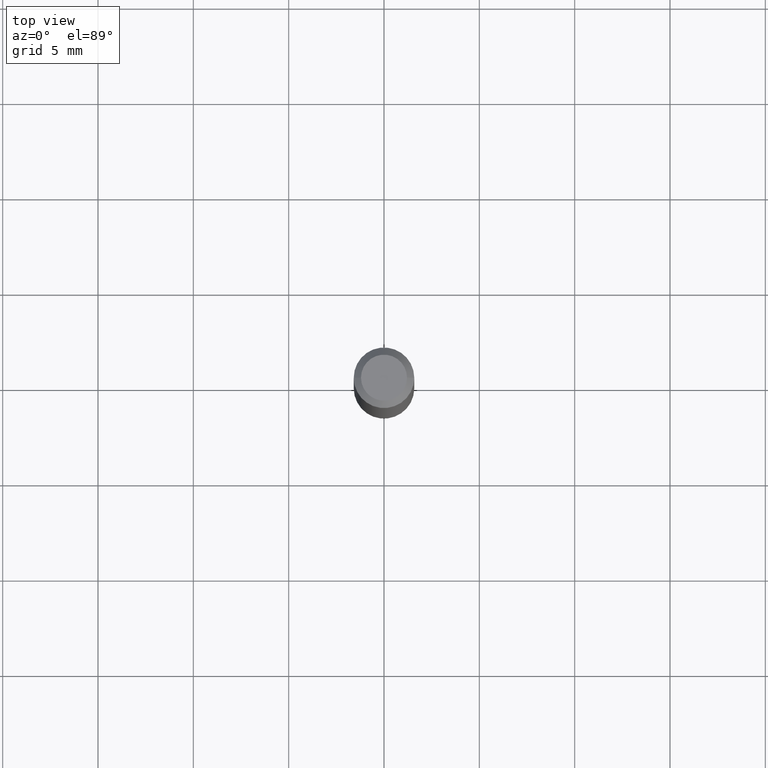
[diagram: clean part render]
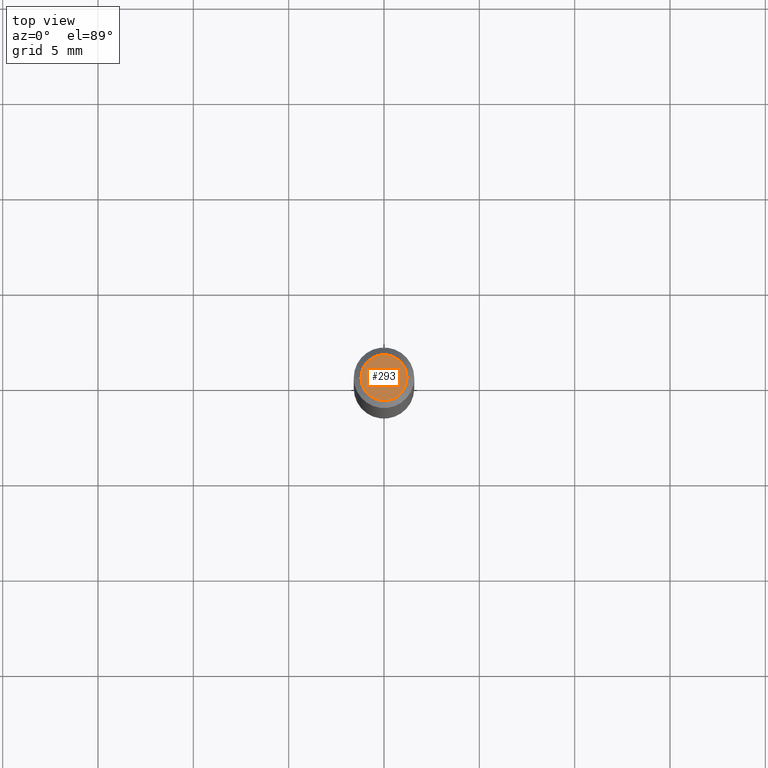
[diagram: same view with one face highlighted and labeled with its STEP entity id]
A machine part, top view. The second image highlights one B-rep face of the part: STEP entity #293.
In plain terms, the highlighted planar face has unit normal (0, -0, -1).
Its self-contained STEP definition (entity closure, byte-faithful):
#28 = CIRCLE ( 'NONE', #90, 0.04749999999999999362 ) ;
#34 = VERTEX_POINT ( 'NONE', #410 ) ;
#37 = EDGE_CURVE ( 'NONE', #242, #34, #28, .T. ) ;
#44 = DIRECTION ( 'NONE',  ( 1.000000000000000000, -6.982962677686267499E-15, 4.852736867747366768E-29 ) ) ;
#54 = CARTESIAN_POINT ( 'NONE',  ( -1.575719463841376315E-44, 2.249709785436367094E-30, 6.443424916547820620E-16 ) ) ;
#90 = AXIS2_PLACEMENT_3D ( 'NONE', #54, #266, #163 ) ;
#120 = EDGE_LOOP ( 'NONE', ( #352, #186 ) ) ;
#133 = CARTESIAN_POINT ( 'NONE',  ( 3.316907271900976096E-16, 0.04749999999999999362, 1.563258822323416346E-16 ) ) ;
#139 = DIRECTION ( 'NONE',  ( -1.000000000000000000, 6.982962677686265922E-15, -4.876176775795935793E-29 ) ) ;
#143 = AXIS2_PLACEMENT_3D ( 'NONE', #453, #236, #44 ) ;
#163 = DIRECTION ( 'NONE',  ( 1.000000000000000000, -6.982962677686267499E-15, 4.852736867747366768E-29 ) ) ;
#186 = ORIENTED_EDGE ( 'NONE', *, *, #353, .T. ) ;
#236 = DIRECTION ( 'NONE',  ( -2.445468806185136597E-29, 3.491481338843145583E-15, 1.000000000000000000 ) ) ;
#242 = VERTEX_POINT ( 'NONE', #312 ) ;
#265 = DIRECTION ( 'NONE',  ( 2.438088387897960049E-29, -3.491481338843145188E-15, -1.000000000000000000 ) ) ;
#266 = DIRECTION ( 'NONE',  ( -2.445468806185136597E-29, 3.491481338843145583E-15, 1.000000000000000000 ) ) ;
#293 = ADVANCED_FACE ( 'NONE', ( #307 ), #309, .F. ) ;
#307 = FACE_OUTER_BOUND ( 'NONE', #120, .T. ) ;
#309 = PLANE ( 'NONE',  #347 ) ;
#312 = CARTESIAN_POINT ( 'NONE',  ( -0.04749999999999999362, 3.578768372314221846E-16, 6.443424916547796954E-16 ) ) ;
#331 = CIRCLE ( 'NONE', #143, 0.04749999999999999362 ) ;
#347 = AXIS2_PLACEMENT_3D ( 'NONE', #133, #265, #139 ) ;
#352 = ORIENTED_EDGE ( 'NONE', *, *, #37, .T. ) ;
#353 = EDGE_CURVE ( 'NONE', #34, #242, #331, .T. ) ;
#410 = CARTESIAN_POINT ( 'NONE',  ( 0.04749999999999999362, -4.035134999187566790E-16, 6.443424916547846258E-16 ) ) ;
#453 = CARTESIAN_POINT ( 'NONE',  ( -1.575719463841376315E-44, 2.249709785436367094E-30, 6.443424916547820620E-16 ) ) ;